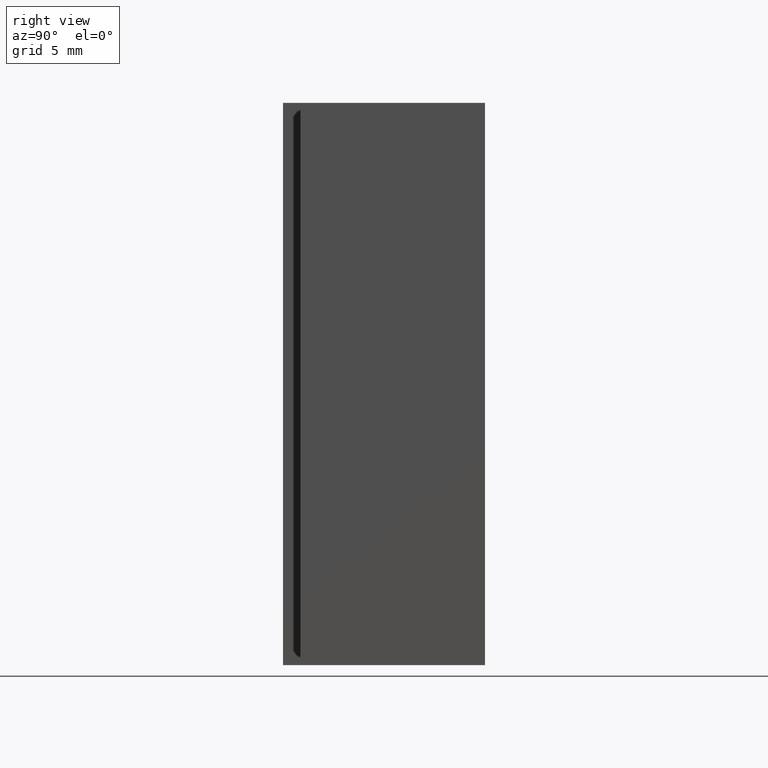
[diagram: clean part render]
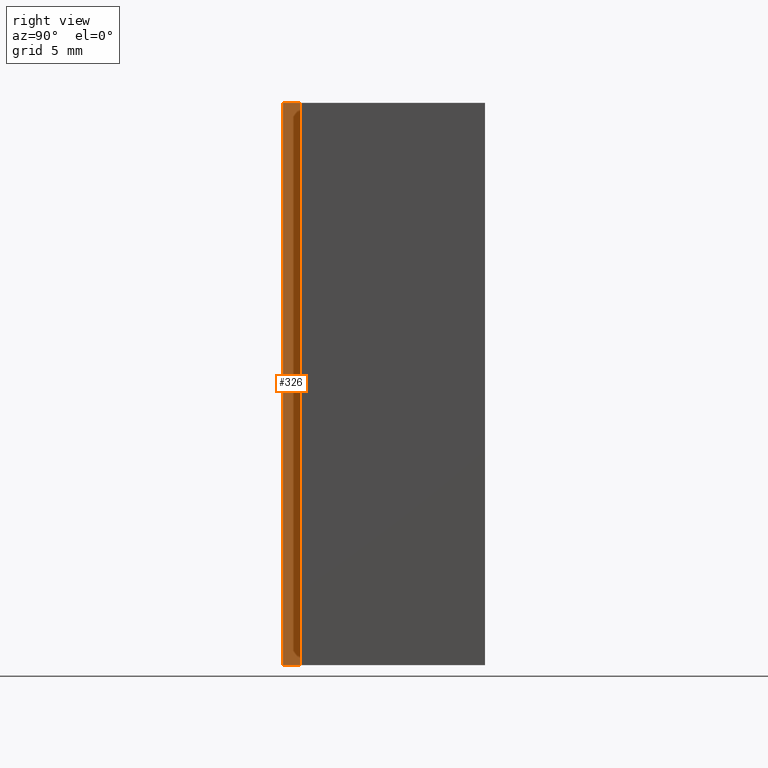
[diagram: same view with one face highlighted and labeled with its STEP entity id]
A machine part, right view. The second image highlights one B-rep face of the part: STEP entity #326.
In plain terms, the highlighted planar face has unit normal (1, 0, 0).
Its self-contained STEP definition (entity closure, byte-faithful):
#41=PLANE('',#423);
#57=FACE_OUTER_BOUND('',#77,.T.);
#77=EDGE_LOOP('',(#253,#254,#255,#256));
#100=LINE('',#576,#130);
#106=LINE('',#589,#136);
#107=LINE('',#590,#137);
#108=LINE('',#591,#138);
#130=VECTOR('',#475,10.);
#136=VECTOR('',#483,10.);
#137=VECTOR('',#484,10.);
#138=VECTOR('',#485,10.);
#173=VERTEX_POINT('',#573);
#174=VERTEX_POINT('',#575);
#179=VERTEX_POINT('',#587);
#180=VERTEX_POINT('',#588);
#202=EDGE_CURVE('',#174,#173,#100,.T.);
#208=EDGE_CURVE('',#179,#180,#106,.T.);
#209=EDGE_CURVE('',#180,#174,#107,.T.);
#210=EDGE_CURVE('',#179,#173,#108,.T.);
#253=ORIENTED_EDGE('',*,*,#208,.T.);
#254=ORIENTED_EDGE('',*,*,#209,.T.);
#255=ORIENTED_EDGE('',*,*,#202,.T.);
#256=ORIENTED_EDGE('',*,*,#210,.F.);
#326=ADVANCED_FACE('',(#57),#41,.T.);
#423=AXIS2_PLACEMENT_3D('',#586,#481,#482);
#475=DIRECTION('',(0.,1.,0.));
#481=DIRECTION('center_axis',(1.,0.,0.));
#482=DIRECTION('ref_axis',(0.,0.,-1.));
#483=DIRECTION('',(0.,-1.,0.));
#484=DIRECTION('',(0.,0.,-1.));
#485=DIRECTION('',(0.,0.,-1.));
#573=CARTESIAN_POINT('',(3.,1.,-16.));
#575=CARTESIAN_POINT('',(3.,0.,-16.));
#576=CARTESIAN_POINT('',(3.,1.,-16.));
#586=CARTESIAN_POINT('Origin',(3.,1.,0.));
#587=CARTESIAN_POINT('',(3.,1.,16.));
#588=CARTESIAN_POINT('',(3.,0.,16.));
#589=CARTESIAN_POINT('',(3.,1.,16.));
#590=CARTESIAN_POINT('',(3.,0.,0.));
#591=CARTESIAN_POINT('',(3.,1.,0.));